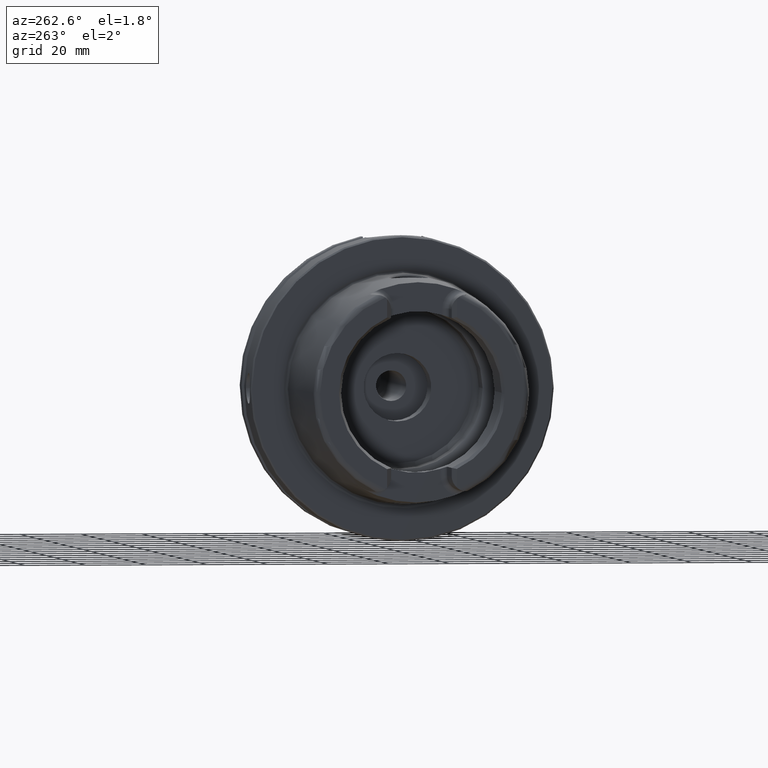
[diagram: clean part render]
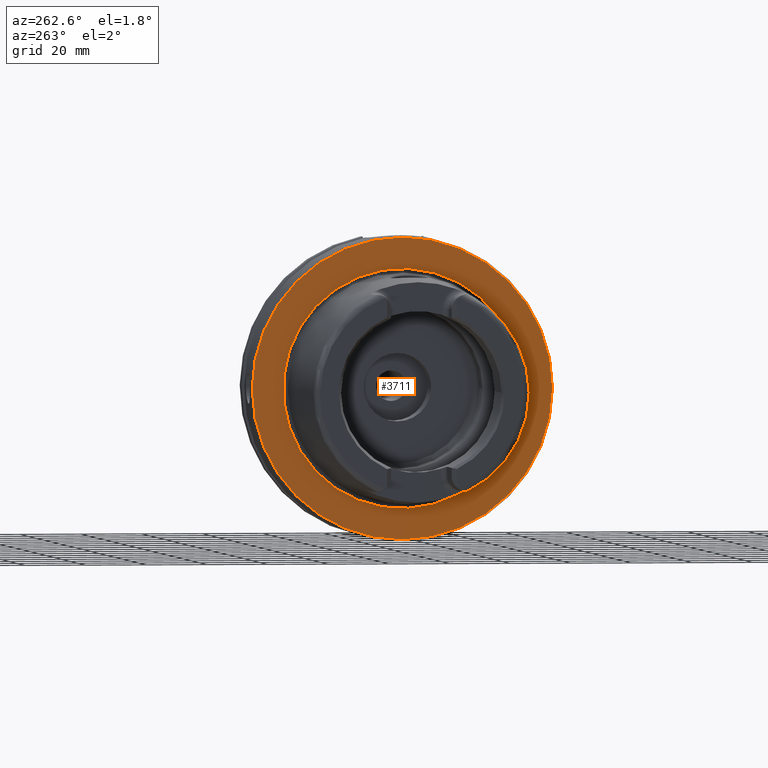
[diagram: same view with one face highlighted and labeled with its STEP entity id]
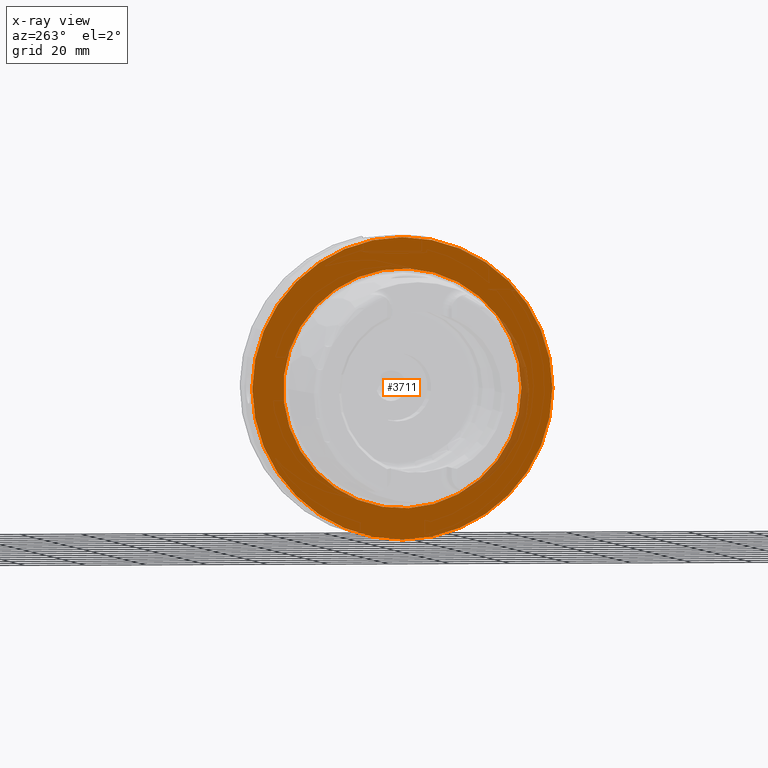
[diagram: x-ray of the same camera — body ghosted, the highlighted face saturated]
A machine part, auxiliary view. The second image highlights one B-rep face of the part: STEP entity #3711.
The next image is the same camera in x-ray: the body ghosted, the highlighted face saturated — about 5% of this face is hidden behind the body in this view.
In plain terms, the highlighted planar face has unit normal (-1, 0, 0).
Its self-contained STEP definition (entity closure, byte-faithful):
#710=FACE_BOUND('',#1165,.T.);
#758=PLANE('',#4194);
#965=FACE_OUTER_BOUND('',#1164,.T.);
#1164=EDGE_LOOP('',(#3275));
#1165=EDGE_LOOP('',(#3276));
#1749=CIRCLE('',#4193,39.2747800249997);
#1750=CIRCLE('',#4195,49.5);
#2068=VERTEX_POINT('',#7091);
#2069=VERTEX_POINT('',#7095);
#2489=EDGE_CURVE('',#2068,#2068,#1749,.T.);
#2490=EDGE_CURVE('',#2069,#2069,#1750,.T.);
#3275=ORIENTED_EDGE('',*,*,#2490,.F.);
#3276=ORIENTED_EDGE('',*,*,#2489,.T.);
#3711=ADVANCED_FACE('',(#965,#710),#758,.T.);
#4193=AXIS2_PLACEMENT_3D('',#7093,#5050,#5051);
#4194=AXIS2_PLACEMENT_3D('',#7094,#5052,#5053);
#4195=AXIS2_PLACEMENT_3D('',#7096,#5054,#5055);
#5050=DIRECTION('center_axis',(1.,0.,0.));
#5051=DIRECTION('ref_axis',(0.,0.,-1.));
#5052=DIRECTION('center_axis',(-1.,0.,0.));
#5053=DIRECTION('ref_axis',(0.,0.,1.));
#5054=DIRECTION('center_axis',(1.,0.,0.));
#5055=DIRECTION('ref_axis',(0.,0.,-1.));
#7091=CARTESIAN_POINT('',(-1.04950770296597E-15,-39.2747800249997,-4.80977336448322E-15));
#7093=CARTESIAN_POINT('Origin',(0.,0.,0.));
#7094=CARTESIAN_POINT('Origin',(0.,49.5,0.));
#7095=CARTESIAN_POINT('',(1.28369537222284E-15,-49.5,-6.0620016557794E-15));
#7096=CARTESIAN_POINT('Origin',(0.,0.,0.));